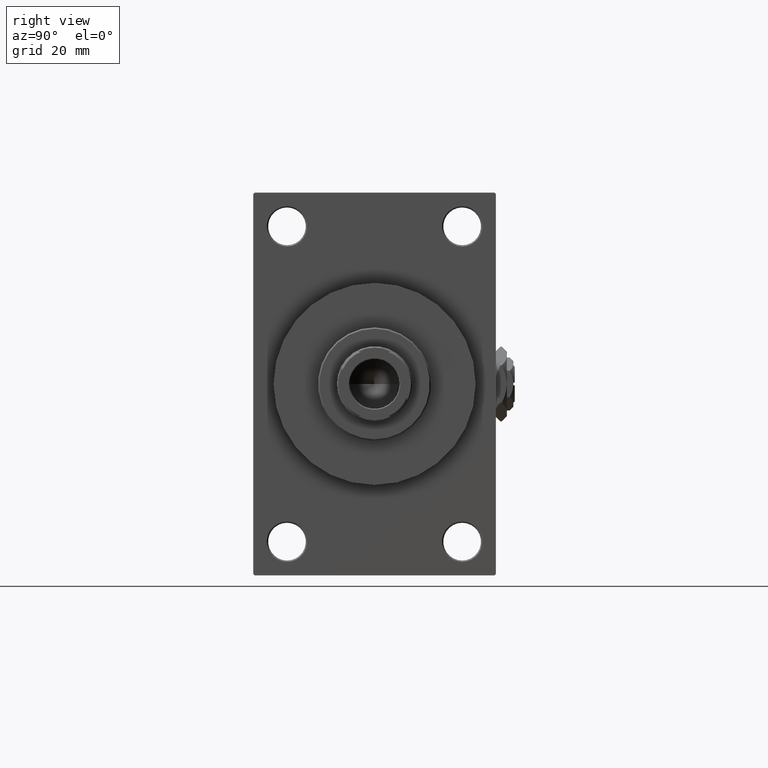
[diagram: clean part render]
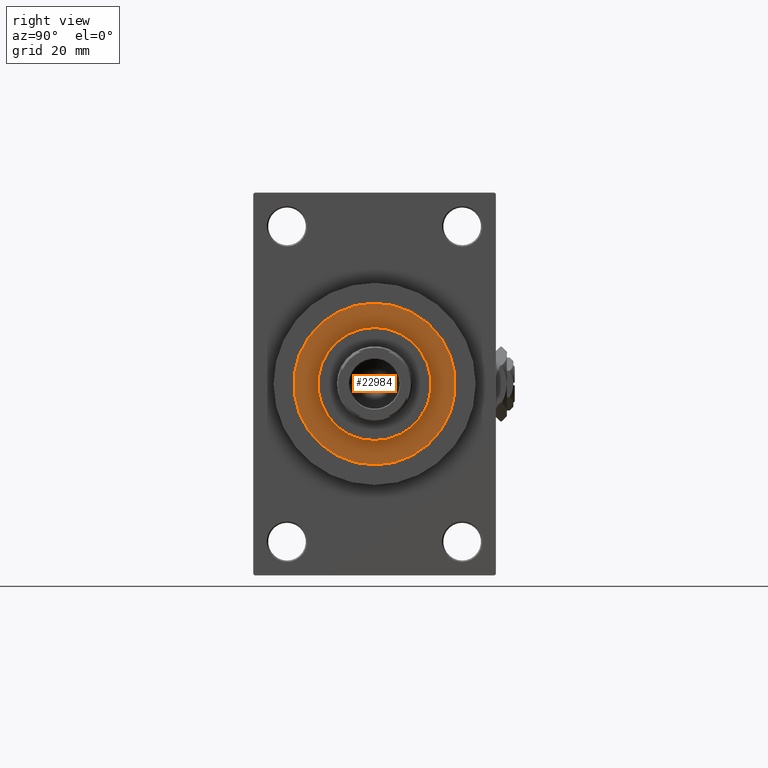
[diagram: same view with one face highlighted and labeled with its STEP entity id]
A machine part, right view. The second image highlights one B-rep face of the part: STEP entity #22984.
In plain terms, the highlighted planar face has unit normal (1, -0, -0).
Its self-contained STEP definition (entity closure, byte-faithful):
#682 = DIRECTION ( 'NONE',  ( 1.000000000000000000, 0.000000000000000000, -0.000000000000000000 ) ) ;
#1356 = CARTESIAN_POINT ( 'NONE',  ( 0.000000000000000000, 0.000000000000000000, 43.25999999999999801 ) ) ;
#1647 = CARTESIAN_POINT ( 'NONE',  ( 21.00000000000000000, 2.571758278209441661E-15, 43.25999999999999801 ) ) ;
#2787 = CARTESIAN_POINT ( 'NONE',  ( -21.00000000000000000, 0.000000000000000000, 43.25999999999999801 ) ) ;
#4004 = DIRECTION ( 'NONE',  ( 0.000000000000000000, 0.000000000000000000, 1.000000000000000000 ) ) ;
#4416 = CIRCLE ( 'NONE', #14745, 30.00000000000000000 ) ;
#4425 = DIRECTION ( 'NONE',  ( 0.000000000000000000, 0.000000000000000000, 1.000000000000000000 ) ) ;
#7756 = ORIENTED_EDGE ( 'NONE', *, *, #31204, .F. ) ;
#8870 = ORIENTED_EDGE ( 'NONE', *, *, #37641, .F. ) ;
#9293 = DIRECTION ( 'NONE',  ( 0.000000000000000000, 0.000000000000000000, 1.000000000000000000 ) ) ;
#9544 = EDGE_LOOP ( 'NONE', ( #12268, #39688 ) ) ;
#11318 = DIRECTION ( 'NONE',  ( 0.000000000000000000, 0.000000000000000000, 1.000000000000000000 ) ) ;
#11796 = DIRECTION ( 'NONE',  ( 1.000000000000000000, 0.000000000000000000, 0.000000000000000000 ) ) ;
#12129 = CARTESIAN_POINT ( 'NONE',  ( 0.000000000000000000, 0.000000000000000000, 43.25999999999999801 ) ) ;
#12268 = ORIENTED_EDGE ( 'NONE', *, *, #43527, .T. ) ;
#14648 = DIRECTION ( 'NONE',  ( 1.000000000000000000, 0.000000000000000000, 0.000000000000000000 ) ) ;
#14745 = AXIS2_PLACEMENT_3D ( 'NONE', #21876, #48815, #14648 ) ;
#16955 = CIRCLE ( 'NONE', #28126, 21.00000000000000000 ) ;
#19119 = PLANE ( 'NONE',  #41319 ) ;
#21876 = CARTESIAN_POINT ( 'NONE',  ( 0.000000000000000000, 0.000000000000000000, 43.25999999999999801 ) ) ;
#22984 = ADVANCED_FACE ( 'NONE', ( #23339, #38555 ), #19119, .T. ) ;
#23339 = FACE_BOUND ( 'NONE', #39556, .T. ) ;
#24552 = CARTESIAN_POINT ( 'NONE',  ( 30.00000000000000000, 3.673940397442059178E-15, 43.25999999999999801 ) ) ;
#26252 = CARTESIAN_POINT ( 'NONE',  ( 0.000000000000000000, 0.000000000000000000, 43.25999999999999801 ) ) ;
#28126 = AXIS2_PLACEMENT_3D ( 'NONE', #26252, #11318, #11796 ) ;
#29640 = VERTEX_POINT ( 'NONE', #35788 ) ;
#30646 = DIRECTION ( 'NONE',  ( 1.000000000000000000, 0.000000000000000000, 0.000000000000000000 ) ) ;
#30909 = VERTEX_POINT ( 'NONE', #24552 ) ;
#31204 = EDGE_CURVE ( 'NONE', #33779, #38811, #39095, .T. ) ;
#33779 = VERTEX_POINT ( 'NONE', #2787 ) ;
#35788 = CARTESIAN_POINT ( 'NONE',  ( -30.00000000000000000, 0.000000000000000000, 43.25999999999999801 ) ) ;
#37519 = AXIS2_PLACEMENT_3D ( 'NONE', #1356, #9293, #43695 ) ;
#37641 = EDGE_CURVE ( 'NONE', #38811, #33779, #16955, .T. ) ;
#38555 = FACE_OUTER_BOUND ( 'NONE', #9544, .T. ) ;
#38811 = VERTEX_POINT ( 'NONE', #1647 ) ;
#39095 = CIRCLE ( 'NONE', #37519, 21.00000000000000000 ) ;
#39371 = CIRCLE ( 'NONE', #39479, 30.00000000000000000 ) ;
#39479 = AXIS2_PLACEMENT_3D ( 'NONE', #42112, #4004, #30646 ) ;
#39556 = EDGE_LOOP ( 'NONE', ( #7756, #8870 ) ) ;
#39688 = ORIENTED_EDGE ( 'NONE', *, *, #45014, .T. ) ;
#41319 = AXIS2_PLACEMENT_3D ( 'NONE', #12129, #4425, #682 ) ;
#42112 = CARTESIAN_POINT ( 'NONE',  ( 0.000000000000000000, 0.000000000000000000, 43.25999999999999801 ) ) ;
#43527 = EDGE_CURVE ( 'NONE', #29640, #30909, #39371, .T. ) ;
#43695 = DIRECTION ( 'NONE',  ( 1.000000000000000000, 0.000000000000000000, 0.000000000000000000 ) ) ;
#45014 = EDGE_CURVE ( 'NONE', #30909, #29640, #4416, .T. ) ;
#48815 = DIRECTION ( 'NONE',  ( 0.000000000000000000, 0.000000000000000000, 1.000000000000000000 ) ) ;